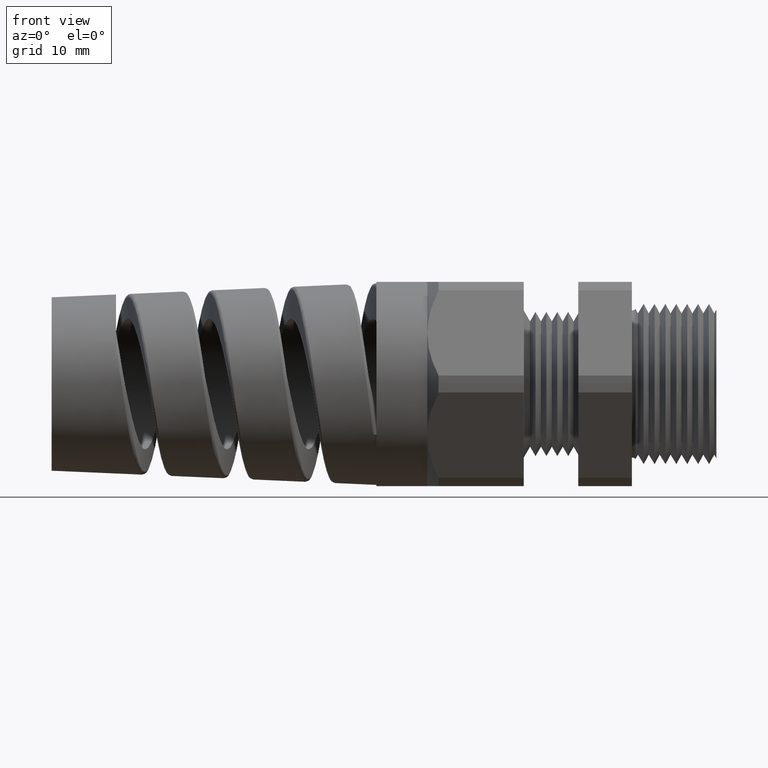
[diagram: clean part render]
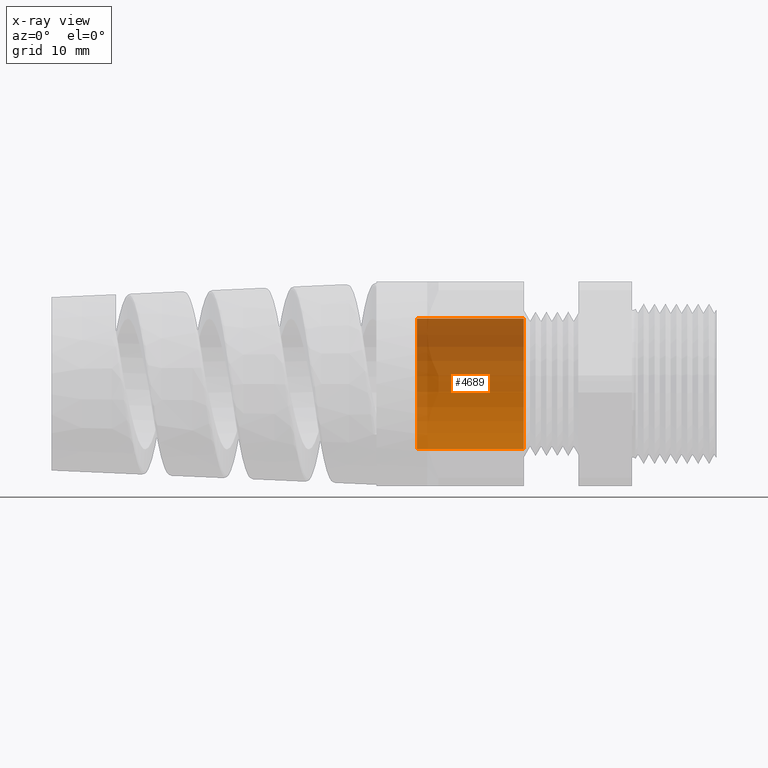
[diagram: x-ray — body ghosted, one internal face saturated and labeled with its STEP entity id]
A machine part, front view, then the same camera in x-ray: the body is ghosted and one INTERNAL B-rep face — a face not visible from any outside direction — is saturated and labeled: STEP entity #4689.
In plain terms, the highlighted cylindrical surface (partial cylindrical patch) has radius 6.096 mm, axis along (1, 0, 0).
Its self-contained STEP definition (entity closure, byte-faithful):
#1030 = VERTEX_POINT ( 'NONE', #7249 ) ;
#4201 = CIRCLE ( 'NONE', #4263, 0.2399999999999999600 ) ;
#4202 = CARTESIAN_POINT ( 'NONE',  ( -0.7069291338582671700, 2.939152317953647400E-017, 0.2399999999999999600 ) ) ;
#4203 = DIRECTION ( 'NONE',  ( 1.000000000000000000, 0.0000000000000000000, 0.0000000000000000000 ) ) ;
#4204 = VECTOR ( 'NONE', #4203, 39.37007874015748100 ) ;
#4205 = CARTESIAN_POINT ( 'NONE',  ( 0.09602717987635048200, 2.939152317953647400E-017, 0.2399999999999999600 ) ) ;
#4206 = DIRECTION ( 'NONE',  ( 0.0000000000000000000, 0.0000000000000000000, -1.000000000000000000 ) ) ;
#4207 = DIRECTION ( 'NONE',  ( 1.000000000000000000, 0.0000000000000000000, 0.0000000000000000000 ) ) ;
#4208 = AXIS2_PLACEMENT_3D ( 'NONE', #4211, #4207, #4206 ) ;
#4209 = CYLINDRICAL_SURFACE ( 'NONE', #4208, 0.2399999999999999600 ) ;
#4210 = LINE ( 'NONE', #4205, #4204 ) ;
#4211 = CARTESIAN_POINT ( 'NONE',  ( 0.09602717987635048200, 0.0000000000000000000, 0.0000000000000000000 ) ) ;
#4217 = FACE_OUTER_BOUND ( 'NONE', #4690, .T. ) ;
#4218 = CARTESIAN_POINT ( 'NONE',  ( -1.099999999999999900, 0.0000000000000000000, -0.2399999999999999600 ) ) ;
#4219 = DIRECTION ( 'NONE',  ( 0.0000000000000000000, 0.0000000000000000000, -1.000000000000000000 ) ) ;
#4220 = DIRECTION ( 'NONE',  ( 1.000000000000000000, 0.0000000000000000000, 0.0000000000000000000 ) ) ;
#4221 = CARTESIAN_POINT ( 'NONE',  ( -1.099999999999999900, 0.0000000000000000000, 0.0000000000000000000 ) ) ;
#4222 = AXIS2_PLACEMENT_3D ( 'NONE', #4221, #4220, #4219 ) ;
#4223 = CIRCLE ( 'NONE', #4222, 0.2399999999999999600 ) ;
#4255 = DIRECTION ( 'NONE',  ( 1.000000000000000000, 0.0000000000000000000, 0.0000000000000000000 ) ) ;
#4256 = VECTOR ( 'NONE', #4255, 39.37007874015748100 ) ;
#4257 = CARTESIAN_POINT ( 'NONE',  ( 0.09602717987635048200, 0.0000000000000000000, -0.2399999999999999600 ) ) ;
#4258 = LINE ( 'NONE', #4257, #4256 ) ;
#4259 = CARTESIAN_POINT ( 'NONE',  ( -0.7069291338582671700, 0.0000000000000000000, -0.2399999999999999600 ) ) ;
#4260 = DIRECTION ( 'NONE',  ( 0.0000000000000000000, 0.0000000000000000000, -1.000000000000000000 ) ) ;
#4261 = DIRECTION ( 'NONE',  ( 1.000000000000000000, 0.0000000000000000000, 0.0000000000000000000 ) ) ;
#4262 = CARTESIAN_POINT ( 'NONE',  ( -0.7069291338582671700, 0.0000000000000000000, 0.0000000000000000000 ) ) ;
#4263 = AXIS2_PLACEMENT_3D ( 'NONE', #4262, #4261, #4260 ) ;
#4685 = EDGE_CURVE ( 'NONE', #4686, #1030, #4223, .T. ) ;
#4686 = VERTEX_POINT ( 'NONE', #4218 ) ;
#4689 = ADVANCED_FACE ( 'NONE', ( #4217 ), #4209, .T. ) ;
#4690 = EDGE_LOOP ( 'NONE', ( #4691, #4692, #4695, #4698 ) ) ;
#4691 = ORIENTED_EDGE ( 'NONE', *, *, #4685, .T. ) ;
#4692 = ORIENTED_EDGE ( 'NONE', *, *, #4693, .T. ) ;
#4693 = EDGE_CURVE ( 'NONE', #1030, #4694, #4210, .T. ) ;
#4694 = VERTEX_POINT ( 'NONE', #4202 ) ;
#4695 = ORIENTED_EDGE ( 'NONE', *, *, #4696, .F. ) ;
#4696 = EDGE_CURVE ( 'NONE', #4697, #4694, #4201, .T. ) ;
#4697 = VERTEX_POINT ( 'NONE', #4259 ) ;
#4698 = ORIENTED_EDGE ( 'NONE', *, *, #4699, .F. ) ;
#4699 = EDGE_CURVE ( 'NONE', #4686, #4697, #4258, .T. ) ;
#7249 = CARTESIAN_POINT ( 'NONE',  ( -1.099999999999999900, 2.939152317953647400E-017, 0.2399999999999999600 ) ) ;